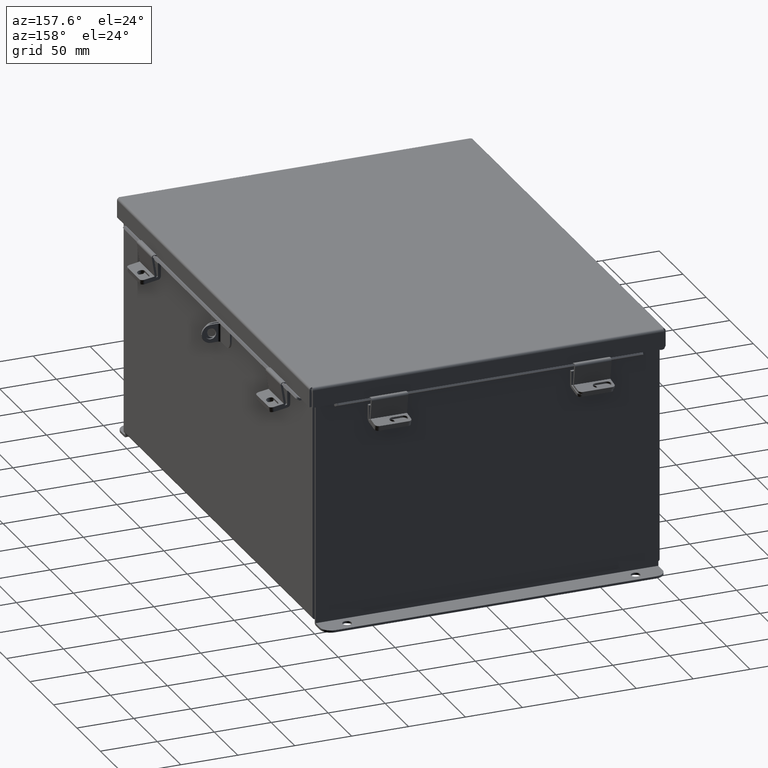
[diagram: clean part render]
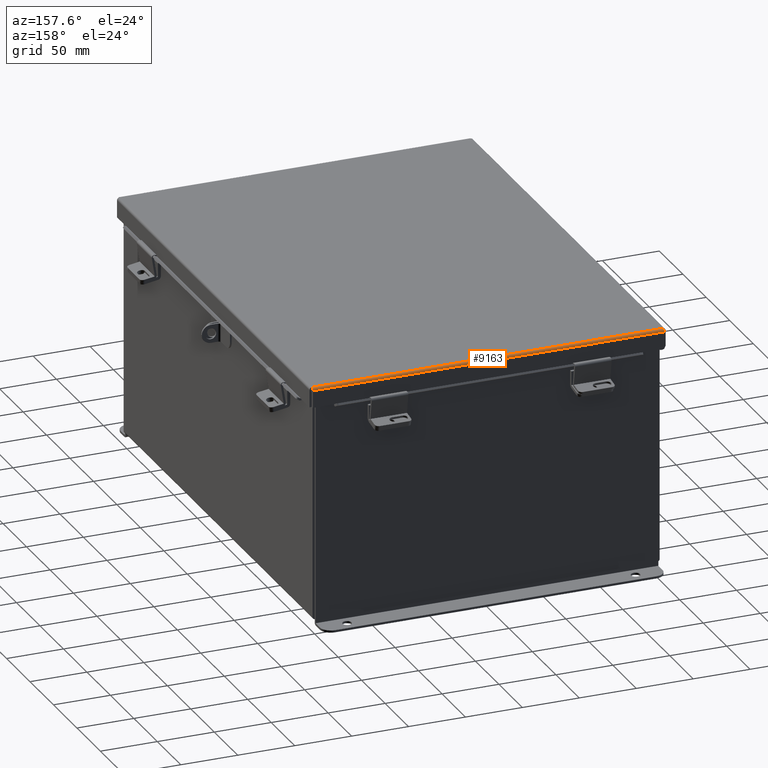
[diagram: same view with one face highlighted and labeled with its STEP entity id]
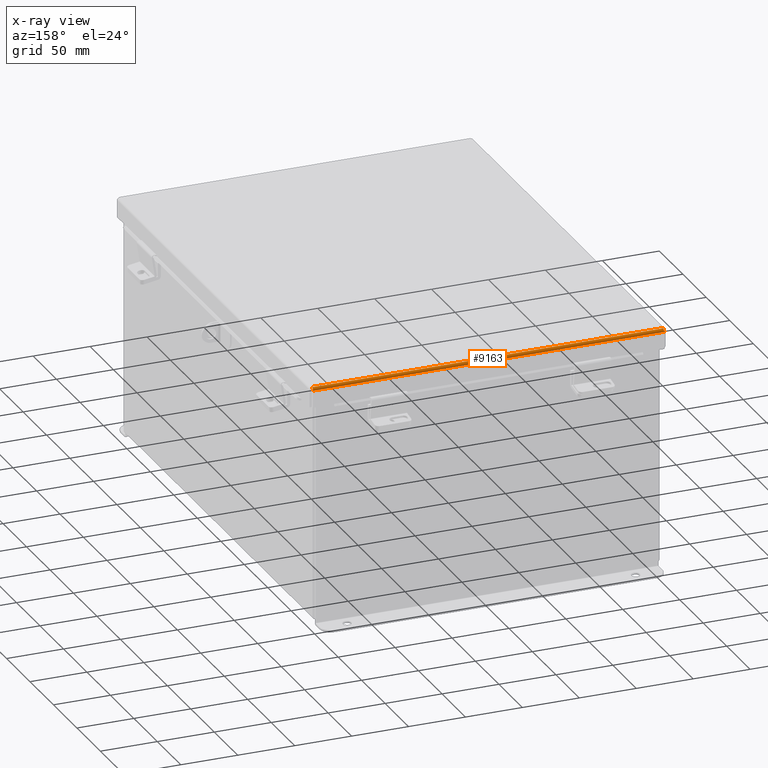
[diagram: x-ray of the same camera — body ghosted, the highlighted face saturated]
A machine part, auxiliary view. The second image highlights one B-rep face of the part: STEP entity #9163.
The next image is the same camera in x-ray: the body ghosted, the highlighted face saturated — about 0% of this face is hidden behind the body in this view.
In plain terms, the highlighted cylindrical surface (edge-blend (fillet) strip) has radius 2.2276 mm, axis along (1, -0, 0).
Its self-contained STEP definition (entity closure, byte-faithful):
#41 = CARTESIAN_POINT ( 'NONE',  ( -6.068550000000000100, 8.068550000000000100, -0.07470000000000015500 ) ) ;
#77 = EDGE_LOOP ( 'NONE', ( #14228, #11788, #13501, #15723 ) ) ;
#558 = FACE_OUTER_BOUND ( 'NONE', #77, .T. ) ;
#582 = CARTESIAN_POINT ( 'NONE',  ( 6.069044077682344900, 8.080029903154992300, -0.07469999999999998900 ) ) ;
#935 = CARTESIAN_POINT ( 'NONE',  ( 6.070526310729377400, 8.112717384578523600, -0.06363106625866844800 ) ) ;
#1440 = B_SPLINE_CURVE_WITH_KNOTS ( 'NONE', 3,
 ( #11344, #12831, #12886, #3549, #14473, #5107, #16064, #6670, #17602, #8227 ),
 .UNSPECIFIED., .F., .F.,
 ( 4, 2, 2, 2, 4 ),
 ( 0.0000000000000000000, 0.2500000000000000000, 0.5000000000000000000, 0.7500000000000000000, 1.000000000000000000 ),
 .UNSPECIFIED. ) ;
#1664 = LINE ( 'NONE', #4981, #13586 ) ;
#1894 = EDGE_CURVE ( 'NONE', #18123, #7760, #8947, .T. ) ;
#2884 = EDGE_CURVE ( 'NONE', #14668, #18123, #1664, .T. ) ;
#3351 = CARTESIAN_POINT ( 'NONE',  ( 6.074478932188137400, 8.156250000000000000, 0.01300000000000010700 ) ) ;
#3549 = CARTESIAN_POINT ( 'NONE',  ( -6.072502621458756500, 8.145181066258665200, -0.03116738457852799200 ) ) ;
#3660 = DIRECTION ( 'NONE',  ( -1.000000000000000000, -2.258600338820354400E-033, 0.0000000000000000000 ) ) ;
#3671 = EDGE_CURVE ( 'NONE', #8853, #7760, #9671, .T. ) ;
#4981 = CARTESIAN_POINT ( 'NONE',  ( -6.074478932188137400, 8.068550000000000100, -0.07470000000000015500 ) ) ;
#5107 = CARTESIAN_POINT ( 'NONE',  ( -6.071020388411725800, 8.122445747341801700, -0.05713078207832045900 ) ) ;
#5508 = VECTOR ( 'NONE', #7966, 39.37007874015748100 ) ;
#5805 = CARTESIAN_POINT ( 'NONE',  ( 6.074478932188137400, 8.156250000000000000, 0.01300000000000010700 ) ) ;
#5829 = CARTESIAN_POINT ( 'NONE',  ( 6.073984854505791700, 8.156250000000000000, 0.001520096845007103900 ) ) ;
#6670 = CARTESIAN_POINT ( 'NONE',  ( -6.069538155364689700, 8.091505289458309500, -0.07241740374381128200 ) ) ;
#6722 = DIRECTION ( 'NONE',  ( 0.0000000000000000000, 1.000000000000000000, -3.577373637655407700E-015 ) ) ;
#7760 = VERTEX_POINT ( 'NONE', #3351 ) ;
#7966 = DIRECTION ( 'NONE',  ( 1.000000000000000000, -2.239330294933626500E-032, -0.0000000000000000000 ) ) ;
#8227 = CARTESIAN_POINT ( 'NONE',  ( -6.068550000000000100, 8.068550000000000100, -0.07470000000000015500 ) ) ;
#8853 = VERTEX_POINT ( 'NONE', #10416 ) ;
#8947 = B_SPLINE_CURVE_WITH_KNOTS ( 'NONE', 3,
 ( #13462, #582, #14912, #935, #13638, #19263, #13390, #13411, #5829, #5805 ),
 .UNSPECIFIED., .F., .F.,
 ( 4, 2, 2, 2, 4 ),
 ( 0.0000000000000000000, 0.2500000000000000000, 0.5000000000000000000, 0.7500000000000000000, 1.000000000000000000 ),
 .UNSPECIFIED. ) ;
#9163 = ADVANCED_FACE ( 'NONE', ( #558 ), #19794, .T. ) ;
#9671 = LINE ( 'NONE', #11744, #5508 ) ;
#10416 = CARTESIAN_POINT ( 'NONE',  ( -6.074478932188137400, 8.156250000000000000, 0.01300000000000010700 ) ) ;
#11344 = CARTESIAN_POINT ( 'NONE',  ( -6.074478932188137400, 8.156250000000000000, 0.01300000000000010700 ) ) ;
#11395 = CARTESIAN_POINT ( 'NONE',  ( -6.074478932188137400, 8.068550000000000100, 0.01300000000000010700 ) ) ;
#11744 = CARTESIAN_POINT ( 'NONE',  ( 6.156249999999998200, 8.156250000000000000, 0.01299999999999901400 ) ) ;
#11788 = ORIENTED_EDGE ( 'NONE', *, *, #16107, .F. ) ;
#11977 = DIRECTION ( 'NONE',  ( 1.000000000000000000, 2.258600338820354400E-033, -0.0000000000000000000 ) ) ;
#12831 = CARTESIAN_POINT ( 'NONE',  ( -6.073984854505791700, 8.156250000000000000, 0.001520096845007104900 ) ) ;
#12886 = CARTESIAN_POINT ( 'NONE',  ( -6.073490776823450500, 8.153967403743811500, -0.009955289458309040900 ) ) ;
#13155 = AXIS2_PLACEMENT_3D ( 'NONE', #11395, #3660, #6722 ) ;
#13390 = CARTESIAN_POINT ( 'NONE',  ( 6.072502621458759200, 8.145181066258668800, -0.03116738457852800300 ) ) ;
#13411 = CARTESIAN_POINT ( 'NONE',  ( 6.073490776823449600, 8.153967403743811500, -0.009955289458309037400 ) ) ;
#13462 = CARTESIAN_POINT ( 'NONE',  ( 6.068550000000000100, 8.068550000000000100, -0.07469999999999907300 ) ) ;
#13501 = ORIENTED_EDGE ( 'NONE', *, *, #3671, .T. ) ;
#13586 = VECTOR ( 'NONE', #11977, 39.37007874015748100 ) ;
#13638 = CARTESIAN_POINT ( 'NONE',  ( 6.071020388411724000, 8.122445747341801700, -0.05713078207832045200 ) ) ;
#14228 = ORIENTED_EDGE ( 'NONE', *, *, #2884, .F. ) ;
#14473 = CARTESIAN_POINT ( 'NONE',  ( -6.072008543776413500, 8.138680782078321100, -0.04089574734180012600 ) ) ;
#14668 = VERTEX_POINT ( 'NONE', #41 ) ;
#14912 = CARTESIAN_POINT ( 'NONE',  ( 6.069538155364688800, 8.091505289458311300, -0.07241740374381128200 ) ) ;
#15258 = CARTESIAN_POINT ( 'NONE',  ( 6.068550000000000100, 8.068550000000000100, -0.07469999999999907300 ) ) ;
#15723 = ORIENTED_EDGE ( 'NONE', *, *, #1894, .F. ) ;
#16064 = CARTESIAN_POINT ( 'NONE',  ( -6.070526310729379200, 8.112717384578529000, -0.06363106625866843400 ) ) ;
#16107 = EDGE_CURVE ( 'NONE', #8853, #14668, #1440, .T. ) ;
#17602 = CARTESIAN_POINT ( 'NONE',  ( -6.069044077682344900, 8.080029903154994000, -0.07469999999999998900 ) ) ;
#18123 = VERTEX_POINT ( 'NONE', #15258 ) ;
#19263 = CARTESIAN_POINT ( 'NONE',  ( 6.072008543776413500, 8.138680782078319400, -0.04089574734180014700 ) ) ;
#19794 = CYLINDRICAL_SURFACE ( 'NONE', #13155, 0.08770000000000026400 ) ;